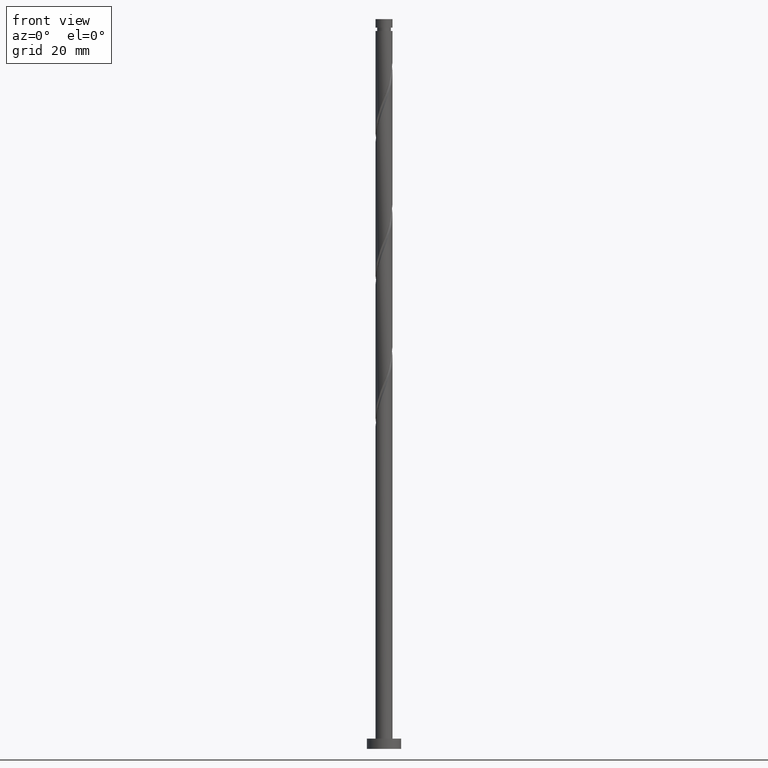
[diagram: clean part render]
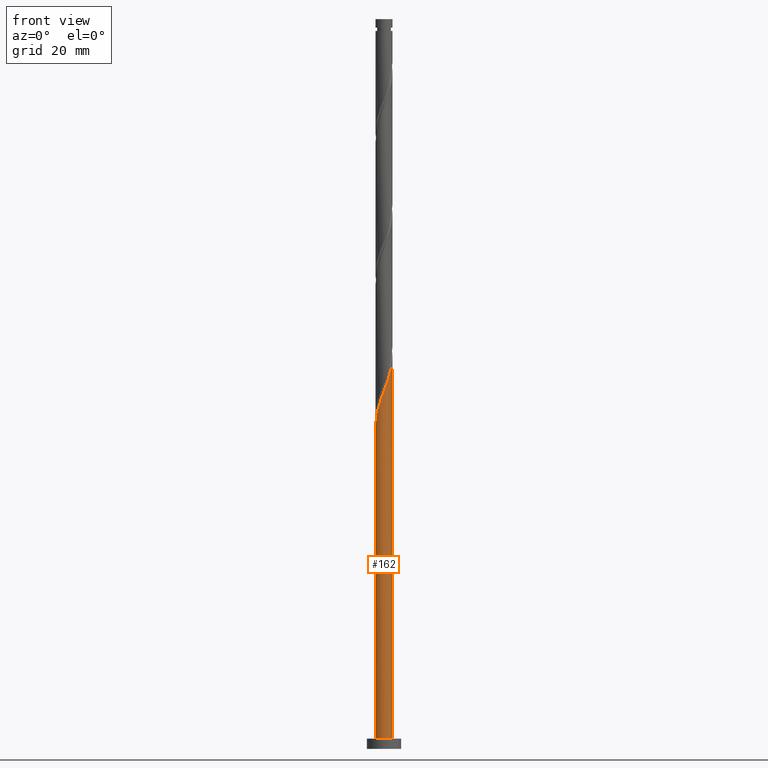
[diagram: same view with one face highlighted and labeled with its STEP entity id]
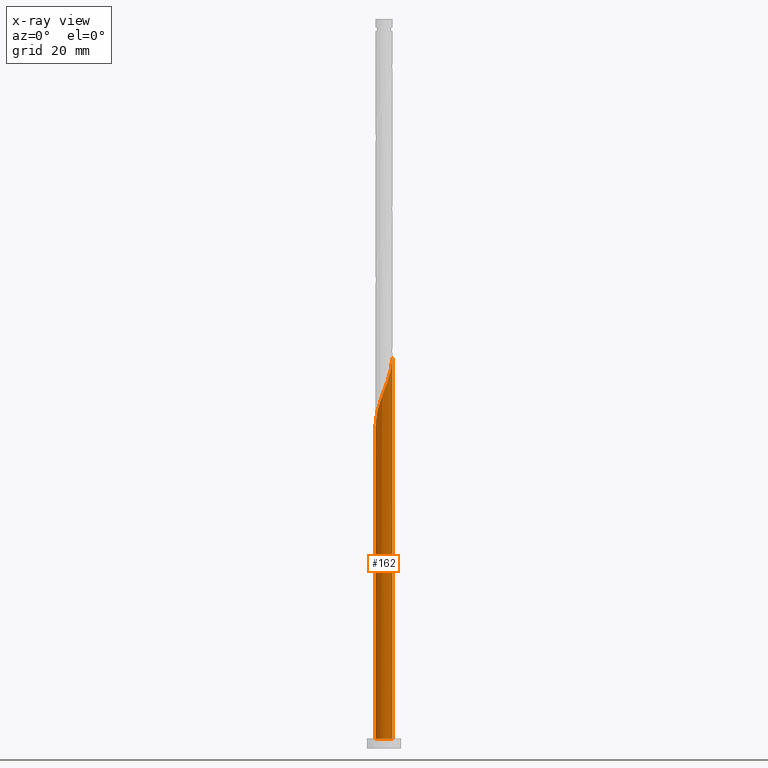
[diagram: x-ray of the same camera — body ghosted, the highlighted face saturated]
A machine part, front view. The second image highlights one B-rep face of the part: STEP entity #162.
The next image is the same camera in x-ray: the body ghosted, the highlighted face saturated — about 0% of this face is hidden behind the body in this view.
In plain terms, the highlighted cylindrical surface (edge-blend (fillet) strip) has radius 2.5 mm, axis along (-0, -0, -1).
Its self-contained STEP definition (entity closure, byte-faithful):
#48 = EDGE_CURVE ( 'NONE', #545, #1415, #388, .T. ) ;
#60 = CARTESIAN_POINT ( 'NONE',  ( -0.1032859222543209415, -2.497865492428302137, 104.5318224933973283 ) ) ;
#69 = CARTESIAN_POINT ( 'NONE',  ( 0.2000098596587718269, -2.510406673947364276, 105.3331045446794292 ) ) ;
#80 = CARTESIAN_POINT ( 'NONE',  ( 2.500000000000002665, -0.2031410963426184824, 114.6834306493879296 ) ) ;
#86 = VERTEX_POINT ( 'NONE', #677 ) ;
#111 = CARTESIAN_POINT ( 'NONE',  ( 2.500000000000000000, 3.061616997868383141E-16, 213.8100000000000023 ) ) ;
#162 = ADVANCED_FACE ( 'NONE', ( #1814 ), #1083, .T. ) ;
#206 = CARTESIAN_POINT ( 'NONE',  ( -1.952405639219642497, -1.590678418946936956, 98.92284813442302038 ) ) ;
#213 = ORIENTED_EDGE ( 'NONE', *, *, #544, .T. ) ;
#223 = EDGE_LOOP ( 'NONE', ( #585, #1614, #213, #1397 ) ) ;
#225 = CARTESIAN_POINT ( 'NONE',  ( 1.343744088061578079, -2.129905499866072471, 108.5382327498076478 ) ) ;
#236 = CARTESIAN_POINT ( 'NONE',  ( 0.4974937185533112594, -2.450000000000001954, 106.1343865959614590 ) ) ;
#338 = VECTOR ( 'NONE', #1514, 1000.000000000000000 ) ;
#358 = CARTESIAN_POINT ( 'NONE',  ( 1.814417076588193733, -1.746435307918773328, 110.1407968523717074 ) ) ;
#375 = CARTESIAN_POINT ( 'NONE',  ( 2.500000000000003109, 1.353512437262433092E-15, 115.2231313867362701 ) ) ;
#388 = LINE ( 'NONE', #111, #338 ) ;
#428 = AXIS2_PLACEMENT_3D ( 'NONE', #1640, #552, #1786 ) ;
#488 = CARTESIAN_POINT ( 'NONE',  ( -2.114376090707300815, -1.333946680735525137, 98.12156608314096218 ) ) ;
#497 = DIRECTION ( 'NONE',  ( -0.000000000000000000, -0.000000000000000000, -1.000000000000000000 ) ) ;
#501 = CARTESIAN_POINT ( 'NONE',  ( 2.500000000000000000, 3.061616997868383141E-16, 3.000000000000000000 ) ) ;
#510 = CARTESIAN_POINT ( 'NONE',  ( 1.997029908174711599, -1.503951975914030292, 110.9420789036537798 ) ) ;
#544 = EDGE_CURVE ( 'NONE', #86, #1613, #1625, .T. ) ;
#545 = VERTEX_POINT ( 'NONE', #375 ) ;
#552 = DIRECTION ( 'NONE',  ( -0.000000000000000000, -0.000000000000000000, -1.000000000000000000 ) ) ;
#585 = ORIENTED_EDGE ( 'NONE', *, *, #48, .F. ) ;
#601 = EDGE_CURVE ( 'NONE', #86, #545, #1519, .T. ) ;
#631 = DIRECTION ( 'NONE',  ( 0.000000000000000000, 0.000000000000000000, 1.000000000000000000 ) ) ;
#633 = CARTESIAN_POINT ( 'NONE',  ( -0.6980629606895826234, -2.400564121808310691, 102.9292583908332546 ) ) ;
#641 = CARTESIAN_POINT ( 'NONE',  ( 0.7949775774478498036, -2.389593326052643185, 106.9356686472435314 ) ) ;
#677 = CARTESIAN_POINT ( 'NONE',  ( -2.500000000000002665, 5.301880210050082454E-15, 94.38979805340289886 ) ) ;
#769 = AXIS2_PLACEMENT_3D ( 'NONE', #1350, #631, #942 ) ;
#777 = CARTESIAN_POINT ( 'NONE',  ( -1.252271117205188133, -2.163750690124368603, 101.3266942882691382 ) ) ;
#814 = CARTESIAN_POINT ( 'NONE',  ( -2.372170500257942294, -0.7891812958414533563, 96.51900198057683156 ) ) ;
#916 = CARTESIAN_POINT ( 'NONE',  ( -2.500000000000002665, 5.301880210050082454E-15, 94.38979805340289886 ) ) ;
#921 = CARTESIAN_POINT ( 'NONE',  ( -2.500000000000000000, 0.000000000000000000, 3.000000000000000000 ) ) ;
#942 = DIRECTION ( 'NONE',  ( 1.000000000000000000, 0.000000000000000000, 0.000000000000000000 ) ) ;
#953 = CARTESIAN_POINT ( 'NONE',  ( 1.579080582324886128, -1.938170403892422122, 109.3395148010896349 ) ) ;
#1058 = CARTESIAN_POINT ( 'NONE',  ( 2.179642739761230796, -1.261468643909288589, 111.7433609549358238 ) ) ;
#1083 = CYLINDRICAL_SURFACE ( 'NONE', #428, 2.500000000000000000 ) ;
#1112 = EDGE_CURVE ( 'NONE', #1613, #1415, #1680, .T. ) ;
#1216 = CARTESIAN_POINT ( 'NONE',  ( -1.733701828209132989, -1.801187933244147832, 99.72413018570503596 ) ) ;
#1335 = CARTESIAN_POINT ( 'NONE',  ( -0.4065817041674137378, -2.485324310909244883, 103.7305404421153270 ) ) ;
#1344 = CARTESIAN_POINT ( 'NONE',  ( 2.298919114669788488, -0.9823293257385184996, 112.5446430062178393 ) ) ;
#1350 = CARTESIAN_POINT ( 'NONE',  ( 0.000000000000000000, 0.000000000000000000, 3.000000000000000000 ) ) ;
#1367 = CARTESIAN_POINT ( 'NONE',  ( -2.500000000000003553, -0.09943282584191606710, 94.65396896903587276 ) ) ;
#1397 = ORIENTED_EDGE ( 'NONE', *, *, #1112, .T. ) ;
#1415 = VERTEX_POINT ( 'NONE', #501 ) ;
#1481 = CARTESIAN_POINT ( 'NONE',  ( -2.492102982822526958, -0.1985515625903699066, 94.91643787801274357 ) ) ;
#1490 = CARTESIAN_POINT ( 'NONE',  ( 2.500000000000003109, 1.353512437262433289E-15, 115.2231313867362701 ) ) ;
#1498 = CARTESIAN_POINT ( 'NONE',  ( 2.418195489578344848, -0.7031900075677509632, 113.3459250574999544 ) ) ;
#1508 = VECTOR ( 'NONE', #497, 1000.000000000000000 ) ;
#1509 = CARTESIAN_POINT ( 'NONE',  ( -1.514998017198624813, -2.011697447541359818, 100.5254122369871084 ) ) ;
#1514 = DIRECTION ( 'NONE',  ( -0.000000000000000000, -0.000000000000000000, -1.000000000000000000 ) ) ;
#1518 = CARTESIAN_POINT ( 'NONE',  ( -2.500000000000000000, 0.000000000000000000, 213.8100000000000023 ) ) ;
#1519 =( BOUNDED_CURVE ( )  B_SPLINE_CURVE ( 2, ( #916, #1367, #1481, #1754, #814, #1774, #488, #206, #1216, #1509, #777, #1616, #633, #1335, #60, #69, #236, #641, #1764, #225, #953, #358, #510, #1058, #1344, #1498, #1634, #80, #1490 ),
 .UNSPECIFIED., .F., .T. ) 
 B_SPLINE_CURVE_WITH_KNOTS ( ( 3, 2, 2, 2, 2, 2, 2, 2, 2, 2, 2, 2, 2, 2, 3 ),
 ( 0.05452716259738315391, 0.05769230769230770939, 0.06730769230769229061, 0.07692307692307687184, 0.08653846153846156408, 0.09615384615384614531, 0.1057692307692307265, 0.1153846153846154188, 0.1250000000000000000, 0.1346153846153845812, 0.1442307692307692735, 0.1538461538461538547, 0.1634615384615384359, 0.1730769230769231282, 0.1795271625973831608 ),
 .UNSPECIFIED. ) 
 CURVE ( )  GEOMETRIC_REPRESENTATION_ITEM ( )  RATIONAL_B_SPLINE_CURVE ( ( 0.9061636035682911761, 0.9069090390690797143, 0.9090909090909364831, 0.9024626128164396910, 0.9090909090909364831, 0.9024626128164396910, 0.9090909090909364831, 0.9024626128164396910, 0.9090909090909364831, 0.9024626128164396910, 0.9090909090909364831, 0.9024626128164396910, 0.9090909090909364831, 0.9024626128164396910, 0.9090909090909364831, 0.9024626128164396910, 0.9090909090909364831, 0.9024626128164396910, 0.9090909090909364831, 0.9024626128164396910, 0.9090909090909364831, 0.9024626128164396910, 0.9090909090909364831, 0.9024626128164396910, 0.9090909090909364831, 0.9024626128164396910, 0.9090909090909364831, 0.9046444828382964598, 0.9061636035682910650 ) ) 
 REPRESENTATION_ITEM ( '' )  );
#1613 = VERTEX_POINT ( 'NONE', #921 ) ;
#1614 = ORIENTED_EDGE ( 'NONE', *, *, #601, .F. ) ;
#1616 = CARTESIAN_POINT ( 'NONE',  ( -0.9895442172117522306, -2.315803932707379165, 102.1279763395512106 ) ) ;
#1625 = LINE ( 'NONE', #1518, #1508 ) ;
#1634 = CARTESIAN_POINT ( 'NONE',  ( 2.467203498451236765, -0.4036172657729013014, 114.1472071087819415 ) ) ;
#1640 = CARTESIAN_POINT ( 'NONE',  ( 0.000000000000000000, 0.000000000000000000, 213.8100000000000023 ) ) ;
#1680 = CIRCLE ( 'NONE', #769, 2.500000000000000000 ) ;
#1754 = CARTESIAN_POINT ( 'NONE',  ( -2.467994458320926565, -0.5011476491587926185, 95.71771992929483019 ) ) ;
#1764 = CARTESIAN_POINT ( 'NONE',  ( 1.069360832754713053, -2.259749412959357606, 107.7369506985255612 ) ) ;
#1774 = CARTESIAN_POINT ( 'NONE',  ( -2.276346542194961131, -1.077214942524115315, 97.32028403185891818 ) ) ;
#1786 = DIRECTION ( 'NONE',  ( -1.000000000000000000, 0.000000000000000000, 0.000000000000000000 ) ) ;
#1814 = FACE_OUTER_BOUND ( 'NONE', #223, .T. ) ;